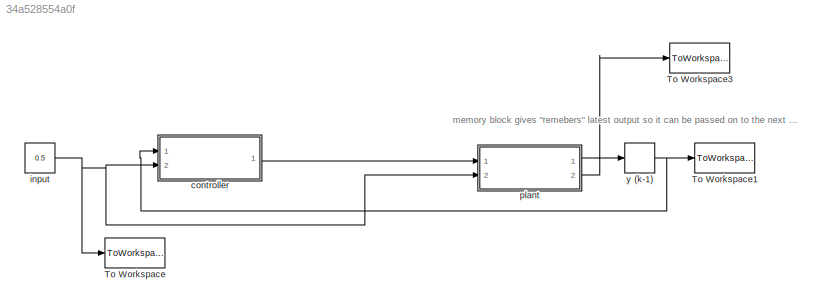
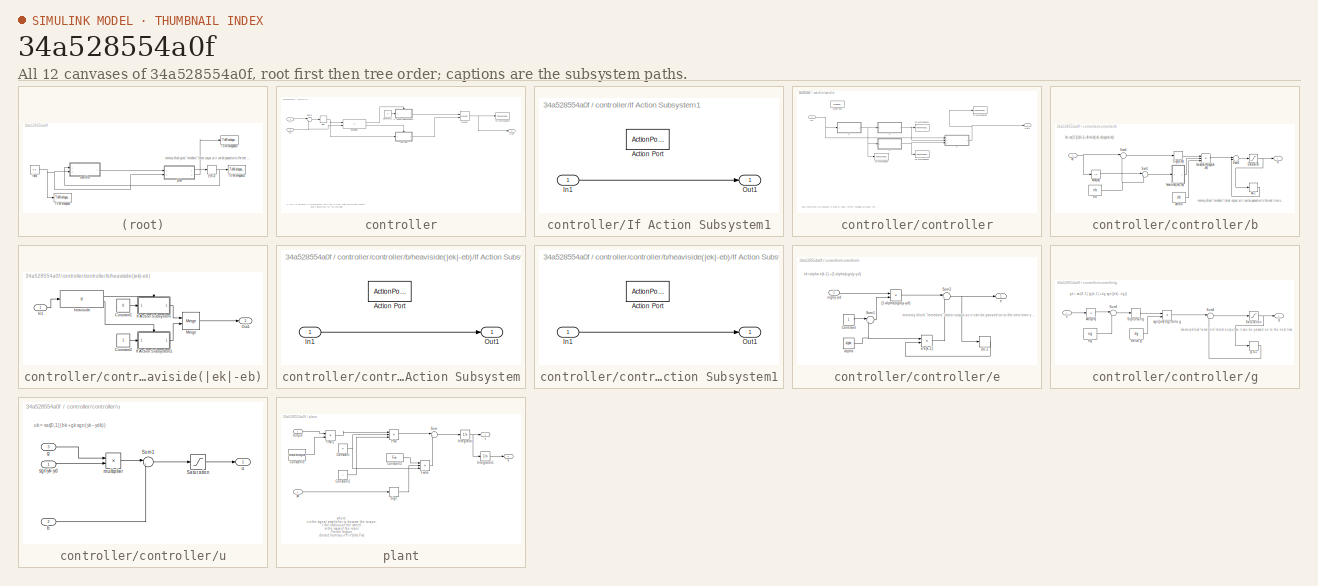
[diagram: thumbnail index - all 12 canvases of the model, root first then tree order]
MODEL slx_34a528554a0f
KIND model
CONFIG AbsTol = auto
CONFIG FixedStep = auto
CONFIG MaxStep = auto
CONFIG MinStep = auto
CONFIG RelTol = 1e-3
CONFIG SampleTimeConstraint = Unconstrained
CONFIG Solver = ode45
CONFIG SolverMode = Auto
CONFIG SolverName = ode45
CONFIG StartTime = 0.0
CONFIG StopTime = 10.0
BLOCK [ToWorkspace] To Workspace
  FixptAsFi = on
  MaxDataPoints = inf
  Ports = [1]
  SampleTime = -1
  Save2DSignal = 3-D array (concatenate along third dimension)
  SaveFormat = Timeseries
  VariableName = ydesired
BLOCK [ToWorkspace] To Workspace1
  FixptAsFi = on
  MaxDataPoints = inf
  Ports = [1]
  SampleTime = -1
  Save2DSignal = 3-D array (concatenate along third dimension)
  SaveFormat = Timeseries
  VariableName = y
BLOCK [ToWorkspace] To Workspace3
  FixptAsFi = on
  MaxDataPoints = inf
  Ports = [1]
  SampleTime = -1
  Save2DSignal = 3-D array (concatenate along third dimension)
  SaveFormat = Timeseries
  VariableName = ys
BLOCK [SubSystem] controller
  Ports = [2, 1]
  RequestExecContextInheritance = off
BLOCK [Constant] controller/Constant2
  Value = 0
BLOCK [SubSystem] controller/If Action Subsystem1
  Ports = [1, 1, 0, 0, 0, 0, 0, 1]
  RequestExecContextInheritance = off
  TreatAsAtomicUnit = on
BLOCK [ActionPort] controller/If Action Subsystem1/Action Port
  ActionType = then
BLOCK [Inport] controller/If Action Subsystem1/In1
  IconDisplay = Port number
BLOCK [Outport] controller/If Action Subsystem1/Out1
  IconDisplay = Port number
BLOCK [Merge] controller/Merge
  Ports = [2, 1]
BLOCK [Signum] controller/Sign
BLOCK [Sum] controller/Sum2
  IconShape = round
  InputSameDT = off
  Inputs = |+-
  OutDataTypeStr = Inherit: Inherit via internal rule
  Ports = [2, 1]
  SaturateOnIntegerOverflow = off
BLOCK [ToWorkspace] controller/To Workspace3
  FixptAsFi = on
  MaxDataPoints = inf
  Ports = [1]
  SampleTime = -1
  Save2DSignal = 3-D array (concatenate along third dimension)
  SaveFormat = Timeseries
  VariableName = merge
BLOCK [SubSystem] controller/controller
  Ports = [1, 1, 0, 0, 0, 0, 0, 1]
  RequestExecContextInheritance = off
  TreatAsAtomicUnit = on
BLOCK [ActionPort] controller/controller/Action Port
  ActionType = else
BLOCK [Inport] controller/controller/In1
  IconDisplay = Port number
BLOCK [Outport] controller/controller/Out1
  IconDisplay = Port number
BLOCK [ToWorkspace] controller/controller/To Workspace
  FixptAsFi = on
  MaxDataPoints = inf
  Ports = [1]
  SampleTime = -1
  Save2DSignal = 3-D array (concatenate along third dimension)
  SaveFormat = Timeseries
  VariableName = eout
BLOCK [ToWorkspace] controller/controller/To Workspace1
  FixptAsFi = on
  MaxDataPoints = inf
  Ports = [1]
  SampleTime = -1
  Save2DSignal = 3-D array (concatenate along third dimension)
  SaveFormat = Timeseries
  VariableName = bout
BLOCK [ToWorkspace] controller/controller/To Workspace2
  FixptAsFi = on
  MaxDataPoints = inf
  Ports = [1]
  SampleTime = -1
  Save2DSignal = 3-D array (concatenate along third dimension)
  SaveFormat = Timeseries
  VariableName = gout
BLOCK [ToWorkspace] controller/controller/To Workspace3
  FixptAsFi = on
  MaxDataPoints = inf
  Ports = [1]
  SampleTime = -1
  Save2DSignal = 3-D array (concatenate along third dimension)
  SaveFormat = Timeseries
  VariableName = u
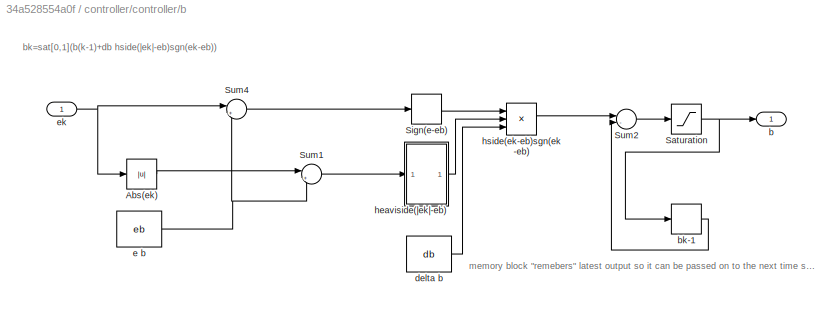
BLOCK [SubSystem] controller/controller/b
  Ports = [1, 1]
  RequestExecContextInheritance = off
BLOCK [Abs] controller/controller/b/Abs(ek)
  SaturateOnIntegerOverflow = off
BLOCK [Saturate] controller/controller/b/Saturation
  InputPortMap = u0
  LowerLimit = -1
  Ports = [1, 1]
  UpperLimit = 1
BLOCK [Signum] controller/controller/b/Sign(e-eb)
  ZeroCross = off
BLOCK [Sum] controller/controller/b/Sum1
  IconShape = round
  InputSameDT = off
  Inputs = |+-
  OutDataTypeStr = Inherit: Inherit via internal rule
  Ports = [2, 1]
  SaturateOnIntegerOverflow = off
BLOCK [Sum] controller/controller/b/Sum2
  IconShape = round
  InputSameDT = off
  Inputs = |-+
  OutDataTypeStr = Inherit: Inherit via internal rule
  Ports = [2, 1]
  SaturateOnIntegerOverflow = off
BLOCK [Sum] controller/controller/b/Sum4
  IconShape = round
  InputSameDT = off
  Inputs = |+-
  OutDataTypeStr = Inherit: Inherit via internal rule
  Ports = [2, 1]
  SaturateOnIntegerOverflow = off
BLOCK [Outport] controller/controller/b/b
  IconDisplay = Port number
BLOCK [Memory] controller/controller/b/bk-1
BLOCK [Constant] controller/controller/b/delta b
  Value = db
BLOCK [Constant] controller/controller/b/e b
  Value = eb
BLOCK [Inport] controller/controller/b/ek
  IconDisplay = Port number
BLOCK [SubSystem] controller/controller/b/heaviside(|ek|-eb)
  Ports = [1, 1]
  RequestExecContextInheritance = off
BLOCK [Constant] controller/controller/b/heaviside(|ek|-eb)/Constant1
  Value = 0
BLOCK [Constant] controller/controller/b/heaviside(|ek|-eb)/Constant2
BLOCK [SubSystem] controller/controller/b/heaviside(|ek|-eb)/If Action Subsystem
  Ports = [1, 1, 0, 0, 0, 0, 0, 1]
  RequestExecContextInheritance = off
  TreatAsAtomicUnit = on
BLOCK [ActionPort] controller/controller/b/heaviside(|ek|-eb)/If Action Subsystem/Action Port
  ActionType = then
BLOCK [Inport] controller/controller/b/heaviside(|ek|-eb)/If Action Subsystem/In1
  IconDisplay = Port number
BLOCK [Outport] controller/controller/b/heaviside(|ek|-eb)/If Action Subsystem/Out1
  IconDisplay = Port number
BLOCK [SubSystem] controller/controller/b/heaviside(|ek|-eb)/If Action Subsystem1
  Ports = [1, 1, 0, 0, 0, 0, 0, 1]
  RequestExecContextInheritance = off
  TreatAsAtomicUnit = on
BLOCK [ActionPort] controller/controller/b/heaviside(|ek|-eb)/If Action Subsystem1/Action Port
  ActionType = else
BLOCK [Inport] controller/controller/b/heaviside(|ek|-eb)/If Action Subsystem1/In1
  IconDisplay = Port number
BLOCK [Outport] controller/controller/b/heaviside(|ek|-eb)/If Action Subsystem1/Out1
  IconDisplay = Port number
BLOCK [Inport] controller/controller/b/heaviside(|ek|-eb)/In1
  IconDisplay = Port number
BLOCK [Merge] controller/controller/b/heaviside(|ek|-eb)/Merge
  Ports = [2, 1]
BLOCK [Outport] controller/controller/b/heaviside(|ek|-eb)/Out1
  IconDisplay = Port number
BLOCK [If] controller/controller/b/heaviside(|ek|-eb)/heaviside
  IfExpression = u1 < 0
  Ports = [1, 2]
BLOCK [Product] controller/controller/b/hside(ek-eb)sgn(ek-eb)
  InputSameDT = off
  Inputs = 3
  OutDataTypeStr = Inherit: Inherit via internal rule
  Ports = [3, 1]
  RndMeth = Floor
  SaturateOnIntegerOverflow = off
BLOCK [SubSystem] controller/controller/e
  Ports = [1, 1]
  RequestExecContextInheritance = off
BLOCK [Product] controller/controller/e/(1-alpha)sgn(y-yd)
  InputSameDT = off
  OutDataTypeStr = Inherit: Inherit via internal rule
  Ports = [2, 1]
  RndMeth = Floor
  SaturateOnIntegerOverflow = off
BLOCK [Constant] controller/controller/e/Constant
BLOCK [Sum] controller/controller/e/Sum1
  IconShape = round
  InputSameDT = off
  Inputs = |+-
  OutDataTypeStr = Inherit: Inherit via internal rule
  Ports = [2, 1]
  SaturateOnIntegerOverflow = off
BLOCK [Sum] controller/controller/e/Sum2
  IconShape = round
  InputSameDT = off
  Inputs = |++
  OutDataTypeStr = Inherit: Inherit via internal rule
  Ports = [2, 1]
  SaturateOnIntegerOverflow = off
BLOCK [Product] controller/controller/e/a*e(k-1)
  InputSameDT = off
  OutDataTypeStr = Inherit: Inherit via internal rule
  Ports = [2, 1]
  RndMeth = Floor
  SaturateOnIntegerOverflow = off
BLOCK [Constant] controller/controller/e/alpha
  Value = alpha
BLOCK [Outport] controller/controller/e/e
  IconDisplay = Port number
BLOCK [Memory] controller/controller/e/ek-1
BLOCK [Inport] controller/controller/e/signy-yd
  IconDisplay = Port number
BLOCK [SubSystem] controller/controller/g
  Ports = [1, 1]
  RequestExecContextInheritance = off
BLOCK [Abs] controller/controller/g/Abs(ek)
  SaturateOnIntegerOverflow = off
BLOCK [Saturate] controller/controller/g/Saturation
  InputPortMap = u0
  LowerLimit = -1
  Ports = [1, 1]
  UpperLimit = 1
BLOCK [Signum] controller/controller/g/Sign|ek|-eg
BLOCK [Sum] controller/controller/g/Sum2
  IconShape = round
  InputSameDT = off
  Inputs = |+-
  OutDataTypeStr = Inherit: Inherit via internal rule
  Ports = [2, 1]
  SaturateOnIntegerOverflow = off
BLOCK [Sum] controller/controller/g/Sum4
  IconShape = round
  InputSameDT = off
  Inputs = |-+
  OutDataTypeStr = Inherit: Inherit via internal rule
  Ports = [2, 1]
  SaturateOnIntegerOverflow = off
BLOCK [Constant] controller/controller/g/delta g
  Value = dg
BLOCK [Inport] controller/controller/g/e
  IconDisplay = Port number
BLOCK [Constant] controller/controller/g/eg
  Value = eg
BLOCK [Outport] controller/controller/g/g
  IconDisplay = Port number
BLOCK [Memory] controller/controller/g/g k-1
BLOCK [Product] controller/controller/g/sgn(|ek|-eg)*dela g
  InputSameDT = off
  OutDataTypeStr = Inherit: Inherit via internal rule
  Ports = [2, 1]
  RndMeth = Floor
  SaturateOnIntegerOverflow = off
BLOCK [SubSystem] controller/controller/u
  Ports = [3, 1]
  RequestExecContextInheritance = off
BLOCK [Saturate] controller/controller/u/Saturation
  InputPortMap = u0
  LowerLimit = -1
  Ports = [1, 1]
  UpperLimit = 1
BLOCK [Sum] controller/controller/u/Sum1
  IconShape = round
  InputSameDT = off
  Inputs = |++
  OutDataTypeStr = Inherit: Inherit via internal rule
  Ports = [2, 1]
  SaturateOnIntegerOverflow = off
BLOCK [Inport] controller/controller/u/b
  IconDisplay = Port number
  Port = 2
BLOCK [Inport] controller/controller/u/g
  IconDisplay = Port number
  Port = 3
BLOCK [Product] controller/controller/u/multiplier 
  InputSameDT = off
  OutDataTypeStr = Inherit: Inherit via internal rule
  Ports = [2, 1]
  RndMeth = Floor
  SaturateOnIntegerOverflow = off
BLOCK [Inport] controller/controller/u/sgnyk-yd
  IconDisplay = Port number
BLOCK [Outport] controller/controller/u/u
  IconDisplay = Port number
BLOCK [If] controller/heaviside
  IfExpression = ((u1 > 0 )&(u2>0))|((u1<0)&(u2<0))
  NumInputs = 2
  Ports = [2, 2]
BLOCK [Outport] controller/u  out
  IconDisplay = Port number
BLOCK [Inport] controller/y
  IconDisplay = Port number
BLOCK [Inport] controller/yd
  IconDisplay = Port number
  Port = 2
BLOCK [Constant] input
  Value = 0.5
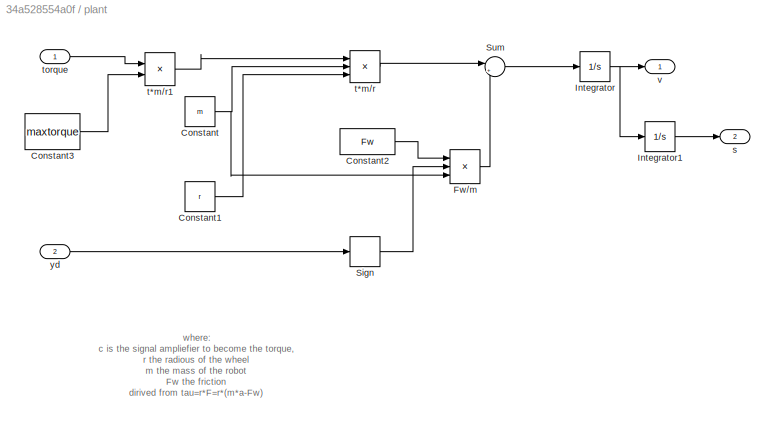
BLOCK [SubSystem] plant
  Ports = [2, 2]
  RequestExecContextInheritance = off
BLOCK [Constant] plant/Constant
  Value = m
BLOCK [Constant] plant/Constant1
  Value = r
BLOCK [Constant] plant/Constant2
  Value = Fw
BLOCK [Constant] plant/Constant3
  Value = maxtorque
BLOCK [Product] plant/Fw//m
  InputSameDT = off
  Inputs = **/
  OutDataTypeStr = Inherit: Inherit via internal rule
  Ports = [3, 1]
  RndMeth = Floor
  SaturateOnIntegerOverflow = off
BLOCK [Integrator] plant/Integrator
  Ports = [1, 1]
BLOCK [Integrator] plant/Integrator1
  Ports = [1, 1]
BLOCK [Signum] plant/Sign
  ZeroCross = off
BLOCK [Sum] plant/Sum
  IconShape = round
  InputSameDT = off
  Inputs = |+-
  OutDataTypeStr = Inherit: Inherit via internal rule
  Ports = [2, 1]
  SaturateOnIntegerOverflow = off
BLOCK [Outport] plant/s
  IconDisplay = Port number
  Port = 2
BLOCK [Product] plant/t*m//r
  InputSameDT = off
  Inputs = **/
  OutDataTypeStr = Inherit: Inherit via internal rule
  Ports = [3, 1]
  RndMeth = Floor
  SaturateOnIntegerOverflow = off
BLOCK [Product] plant/t*m//r1
  InputSameDT = off
  Inputs = **
  OutDataTypeStr = Inherit: Inherit via internal rule
  Ports = [2, 1]
  RndMeth = Floor
  SaturateOnIntegerOverflow = off
BLOCK [Inport] plant/torque
  IconDisplay = Port number
BLOCK [Outport] plant/v
  IconDisplay = Port number
BLOCK [Inport] plant/yd
  IconDisplay = Port number
  Port = 2
BLOCK [Memory] y (k-1)
ANNOTATION (root): memory block gives "remebers" latest output so it can be passed on to the next time step
ANNOTATION controller: if ((u1 > 0 )&(u2>0))|((u1 |yd| than the system outputs zero else it will normaly run the controller
ANNOTATION controller/controller: each subsystem corrosponds to a line of code, the left variables are input the ones on the right are output
ANNOTATION controller/controller/b: bk=sat[0,1](b(k-1)+db hside(|ek|-eb)sgn(ek-eb))
ANNOTATION controller/controller/b: memory block "remebers" latest output so it can be passed on to the next time step
ANNOTATION controller/controller/e: ek=alpha e(k-1) +(1-alpha)sgn(y-yd)
ANNOTATION controller/controller/e: memory block "remebers" latest output so it can be passed on to the next time step
ANNOTATION controller/controller/g: gk = sat[0,1] (g(k−1) +dg sgn(|ek|− eg))
ANNOTATION controller/controller/g: memory block "remebers" latest output so it can be passed on to the next time step
ANNOTATION controller/controller/u: uk = sat[0,1] (bk +gk sgn(yk −ydk))
ANNOTATION plant: where: c is the signal ampliefier to become the torque, r the radious of the wheel m the mass of the robot Fw the friction dirived from tau=r*F=r*(m*a-Fw) witch can be rewritten as: a=(t/r -Fw)/m finally this makes: v=d/dt(t*m/r -Fw/m)
LINE controller/Constant2:1 -> controller/If Action Subsystem1:1
LINE controller/If Action Subsystem1/In1:1 -> controller/If Action Subsystem1/Out1:1
LINE controller/If Action Subsystem1:1 -> controller/Merge:1
NET controller/Merge:1 -> controller/To Workspace3:1, controller/u  out:1
NET controller/Sign:1 -> controller/controller:1, controller/heaviside:1
LINE controller/Sum2:1 -> controller/Sign:1
NET controller/controller/In1:1 -> controller/controller/e:1, controller/controller/u:1
LINE controller/controller/b/Abs(ek):1 -> controller/controller/b/Sum1:1
NET controller/controller/b/Saturation:1 -> controller/controller/b/b:1, controller/controller/b/bk-1:1
LINE controller/controller/b/Sign(e-eb):1 -> controller/controller/b/hside(ek-eb)sgn(ek-eb):1
LINE controller/controller/b/Sum1:1 -> controller/controller/b/heaviside(|ek|-eb):1
LINE controller/controller/b/Sum2:1 -> controller/controller/b/Saturation:1
LINE controller/controller/b/Sum4:1 -> controller/controller/b/Sign(e-eb):1
LINE controller/controller/b/bk-1:1 -> controller/controller/b/Sum2:2
LINE controller/controller/b/delta b:1 -> controller/controller/b/hside(ek-eb)sgn(ek-eb):3
NET controller/controller/b/e b:1 -> controller/controller/b/Sum1:2, controller/controller/b/Sum4:2
NET controller/controller/b/ek:1 -> controller/controller/b/Abs(ek):1, controller/controller/b/Sum4:1
LINE controller/controller/b/heaviside(|ek|-eb)/Constant1:1 -> controller/controller/b/heaviside(|ek|-eb)/If Action Subsystem:1
LINE controller/controller/b/heaviside(|ek|-eb)/Constant2:1 -> controller/controller/b/heaviside(|ek|-eb)/If Action Subsystem1:1
LINE controller/controller/b/heaviside(|ek|-eb)/If Action Subsystem/In1:1 -> controller/controller/b/heaviside(|ek|-eb)/If Action Subsystem/Out1:1
LINE controller/controller/b/heaviside(|ek|-eb)/If Action Subsystem1/In1:1 -> controller/controller/b/heaviside(|ek|-eb)/If Action Subsystem1/Out1:1
LINE controller/controller/b/heaviside(|ek|-eb)/If Action Subsystem1:1 -> controller/controller/b/heaviside(|ek|-eb)/Merge:2
LINE controller/controller/b/heaviside(|ek|-eb)/If Action Subsystem:1 -> controller/controller/b/heaviside(|ek|-eb)/Merge:1
LINE controller/controller/b/heaviside(|ek|-eb)/In1:1 -> controller/controller/b/heaviside(|ek|-eb)/heaviside:1
LINE controller/controller/b/heaviside(|ek|-eb)/Merge:1 -> controller/controller/b/heaviside(|ek|-eb)/Out1:1
LINE controller/controller/b/heaviside(|ek|-eb)/heaviside:1 -> controller/controller/b/heaviside(|ek|-eb)/If Action Subsystem:ifaction
LINE controller/controller/b/heaviside(|ek|-eb)/heaviside:2 -> controller/controller/b/heaviside(|ek|-eb)/If Action Subsystem1:ifaction
LINE controller/controller/b/heaviside(|ek|-eb):1 -> controller/controller/b/hside(ek-eb)sgn(ek-eb):2
LINE controller/controller/b/hside(ek-eb)sgn(ek-eb):1 -> controller/controller/b/Sum2:1
NET controller/controller/b:1 -> controller/controller/To Workspace1:1, controller/controller/u:2
LINE controller/controller/e/(1-alpha)sgn(y-yd):1 -> controller/controller/e/Sum2:1
LINE controller/controller/e/Constant:1 -> controller/controller/e/Sum1:1
LINE controller/controller/e/Sum1:1 -> controller/controller/e/(1-alpha)sgn(y-yd):2
NET controller/controller/e/Sum2:1 -> controller/controller/e/e:1, controller/controller/e/ek-1:1
LINE controller/controller/e/a*e(k-1):1 -> controller/controller/e/Sum2:2
NET controller/controller/e/alpha:1 -> controller/controller/e/Sum1:2, controller/controller/e/a*e(k-1):1
LINE controller/controller/e/ek-1:1 -> controller/controller/e/a*e(k-1):2
LINE controller/controller/e/signy-yd:1 -> controller/controller/e/(1-alpha)sgn(y-yd):1
NET controller/controller/e:1 -> controller/controller/To Workspace:1, controller/controller/b:1, controller/controller/g:1
LINE controller/controller/g/Abs(ek):1 -> controller/controller/g/Sum2:1
NET controller/controller/g/Saturation:1 -> controller/controller/g/g k-1:1, controller/controller/g/g:1
LINE controller/controller/g/Sign|ek|-eg:1 -> controller/controller/g/sgn(|ek|-eg)*dela g:1
LINE controller/controller/g/Sum2:1 -> controller/controller/g/Sign|ek|-eg:1
LINE controller/controller/g/Sum4:1 -> controller/controller/g/Saturation:1
LINE controller/controller/g/delta g:1 -> controller/controller/g/sgn(|ek|-eg)*dela g:2
LINE controller/controller/g/e:1 -> controller/controller/g/Abs(ek):1
LINE controller/controller/g/eg:1 -> controller/controller/g/Sum2:2
LINE controller/controller/g/g k-1:1 -> controller/controller/g/Sum4:2
LINE controller/controller/g/sgn(|ek|-eg)*dela g:1 -> controller/controller/g/Sum4:1
NET controller/controller/g:1 -> controller/controller/To Workspace2:1, controller/controller/u:3
LINE controller/controller/u/Saturation:1 -> controller/controller/u/u:1
LINE controller/controller/u/Sum1:1 -> controller/controller/u/Saturation:1
LINE controller/controller/u/b:1 -> controller/controller/u/Sum1:2
LINE controller/controller/u/g:1 -> controller/controller/u/multiplier :1
LINE controller/controller/u/multiplier :1 -> controller/controller/u/Sum1:1
LINE controller/controller/u/sgnyk-yd:1 -> controller/controller/u/multiplier :2
NET controller/controller/u:1 -> controller/controller/Out1:1, controller/controller/To Workspace3:1
LINE controller/controller:1 -> controller/Merge:2
LINE controller/heaviside:1 -> controller/If Action Subsystem1:ifaction
LINE controller/heaviside:2 -> controller/controller:ifaction
LINE controller/y:1 -> controller/Sum2:1
NET controller/yd:1 -> controller/Sum2:2, controller/heaviside:2
LINE controller:1 -> plant:1
NET input:1 -> To Workspace:1, controller:2, plant:2
LINE plant/Constant1:1 -> plant/t*m//r:3
LINE plant/Constant2:1 -> plant/Fw//m:1
LINE plant/Constant3:1 -> plant/t*m//r1:2
NET plant/Constant:1 -> plant/Fw//m:3, plant/t*m//r:2
LINE plant/Fw//m:1 -> plant/Sum:2
LINE plant/Integrator1:1 -> plant/s:1
NET plant/Integrator:1 -> plant/Integrator1:1, plant/v:1
LINE plant/Sign:1 -> plant/Fw//m:2
LINE plant/Sum:1 -> plant/Integrator:1
LINE plant/t*m//r1:1 -> plant/t*m//r:1
LINE plant/t*m//r:1 -> plant/Sum:1
LINE plant/torque:1 -> plant/t*m//r1:1
LINE plant/yd:1 -> plant/Sign:1
LINE plant:1 -> y (k-1):1
LINE plant:2 -> To Workspace3:1
NET y (k-1):1 -> To Workspace1:1, controller:1
note: NET lines group one-source signal fan-out (src -> all destinations, sorted); 1:1 wires keep LINE
